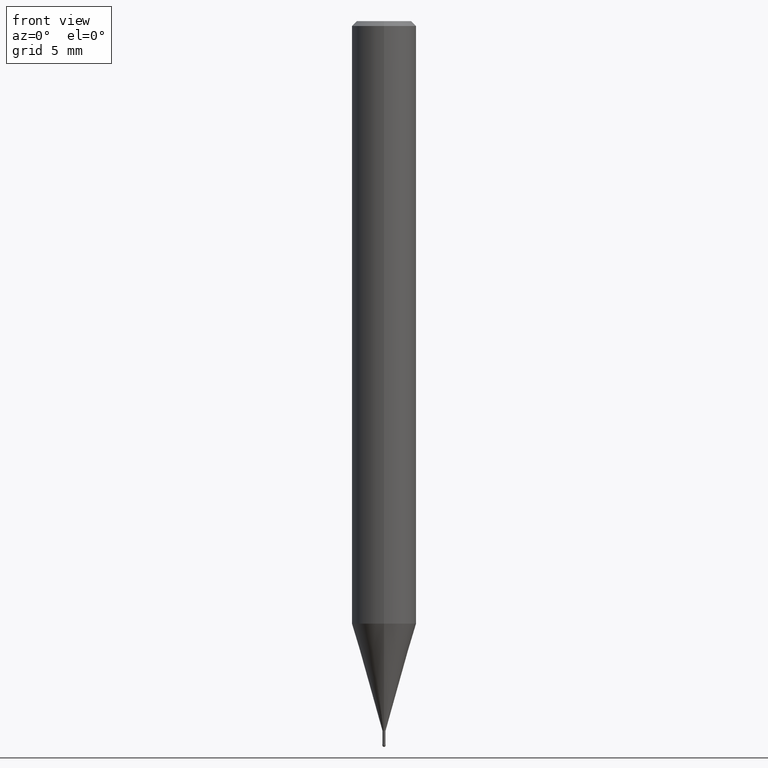
[diagram: clean part render]
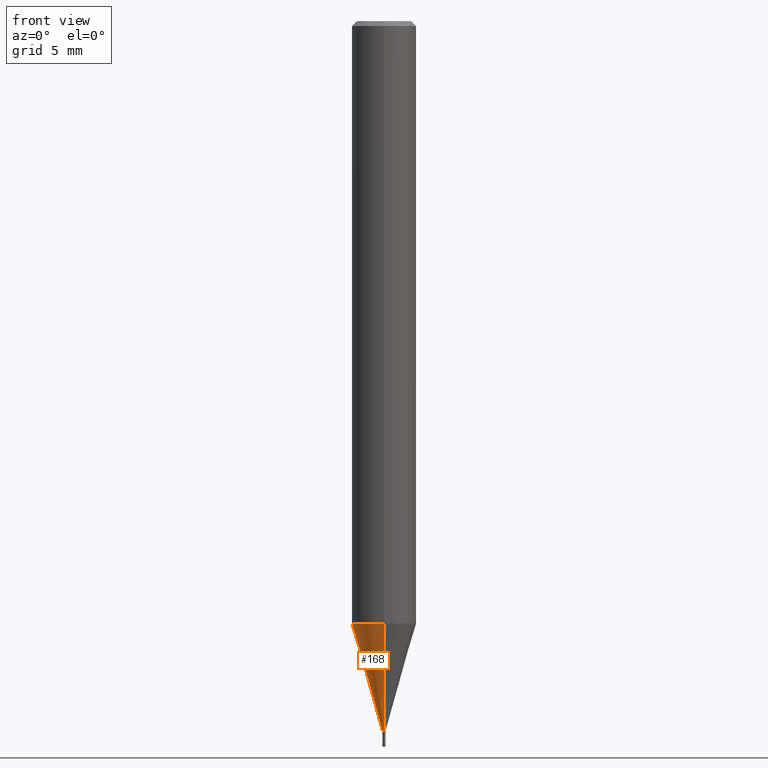
[diagram: same view with one face highlighted and labeled with its STEP entity id]
A machine part, front view. The second image highlights one B-rep face of the part: STEP entity #168.
In plain terms, the highlighted conical surface has half-angle 15.999 deg.
Its self-contained STEP definition (entity closure, byte-faithful):
#96=VERTEX_POINT('',#238);
#98=VERTEX_POINT('',#240);
#104=EDGE_CURVE('',#96,#162,#247,.T.);
#148=EDGE_CURVE('',#160,#98,#299,.T.);
#156=EDGE_CURVE('',#162,#98,#308,.T.);
#160=VERTEX_POINT('',#312);
#162=VERTEX_POINT('',#314);
#168=ADVANCED_FACE('',(#321),#322,.T.);
#172=EDGE_CURVE('',#160,#96,#327,.T.);
#238=CARTESIAN_POINT('',(2.44915147732706E-016,-1.99995,-37.356));
#240=CARTESIAN_POINT('',(0.0,0.09495,-44.0));
#247=CIRCLE('',#398,1.99995);
#299=CIRCLE('',#467,0.09495);
#308=LINE('',#479,#480);
#312=CARTESIAN_POINT('',(1.16276373295435E-017,-0.09495,-44.0));
#314=CARTESIAN_POINT('',(0.0,1.99995,-37.356));
#321=FACE_OUTER_BOUND('',#494,.T.);
#322=CONICAL_SURFACE('',#495,1.04745,0.279233718115795);
#327=LINE('',#501,#502);
#398=AXIS2_PLACEMENT_3D('',#573,#574,#575);
#467=AXIS2_PLACEMENT_3D('',#649,#650,#651);
#479=CARTESIAN_POINT('',(-1.28271392531125E-016,1.04745,-40.678));
#480=VECTOR('',#666,1.0);
#494=EDGE_LOOP('',(#679,#680,#681,#682));
#495=AXIS2_PLACEMENT_3D('',#683,#684,#685);
#501=CARTESIAN_POINT('',(1.28271392531125E-016,-1.04745,-40.678));
#502=VECTOR('',#692,1.0);
#573=CARTESIAN_POINT('',(0.0,0.0,-37.356));
#574=DIRECTION('',(0.0,0.0,-1.0));
#575=DIRECTION('',(0.0,1.0,0.0));
#649=CARTESIAN_POINT('',(0.0,0.0,-44.0));
#650=DIRECTION('',(0.0,0.0,-1.0));
#651=DIRECTION('',(0.0,1.0,0.0));
#666=DIRECTION('',(3.37524935540219E-017,-0.275619128127744,-0.961266922457078));
#679=ORIENTED_EDGE('',*,*,#156,.T.);
#680=ORIENTED_EDGE('',*,*,#148,.F.);
#681=ORIENTED_EDGE('',*,*,#172,.T.);
#682=ORIENTED_EDGE('',*,*,#104,.T.);
#683=CARTESIAN_POINT('',(0.0,0.0,-40.678));
#684=DIRECTION('',(-0.0,-0.0,1.0));
#685=DIRECTION('',(0.0,1.0,0.0));
#692=DIRECTION('',(3.37524935540219E-017,-0.275619128127744,0.961266922457078));